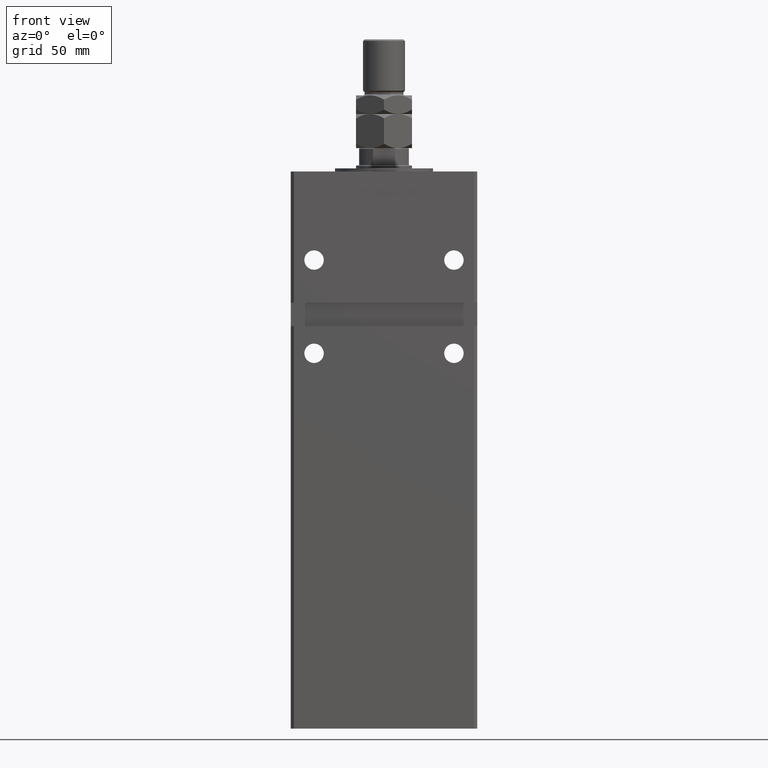
[diagram: clean part render]
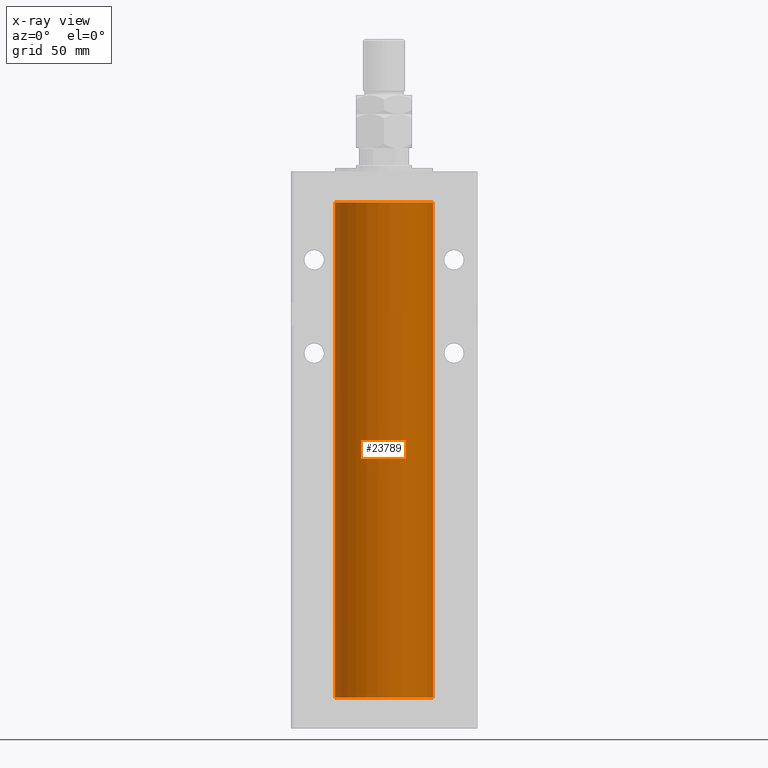
[diagram: x-ray — body ghosted, one internal face saturated and labeled with its STEP entity id]
A machine part, front view, then the same camera in x-ray: the body is ghosted and one INTERNAL B-rep face — a face not visible from any outside direction — is saturated and labeled: STEP entity #23789.
In plain terms, the highlighted cylindrical surface (partial cylindrical patch) has radius 31.5 mm, axis along (-0, -0, -1).
Its self-contained STEP definition (entity closure, byte-faithful):
#1245 = ORIENTED_EDGE ( 'NONE', *, *, #35800, .F. ) ;
#1313 = DIRECTION ( 'NONE',  ( -0.000000000000000000, -0.000000000000000000, -1.000000000000000000 ) ) ;
#2212 = CARTESIAN_POINT ( 'NONE',  ( -31.50000000000000000, 0.000000000000000000, 318.5000000000000000 ) ) ;
#3697 = DIRECTION ( 'NONE',  ( -0.000000000000000000, -0.000000000000000000, -1.000000000000000000 ) ) ;
#6182 = CIRCLE ( 'NONE', #51262, 31.50000000000000000 ) ;
#8646 = CARTESIAN_POINT ( 'NONE',  ( -31.50000000000000000, 0.000000000000000000, 318.5000000000000000 ) ) ;
#14042 = AXIS2_PLACEMENT_3D ( 'NONE', #39222, #1313, #35067 ) ;
#14574 = EDGE_CURVE ( 'NONE', #53604, #37786, #49046, .T. ) ;
#15767 = VERTEX_POINT ( 'NONE', #2212 ) ;
#17807 = AXIS2_PLACEMENT_3D ( 'NONE', #21781, #30377, #34499 ) ;
#17872 = VECTOR ( 'NONE', #3697, 1000.000000000000000 ) ;
#18061 = DIRECTION ( 'NONE',  ( 1.000000000000000000, 0.000000000000000000, 0.000000000000000000 ) ) ;
#18394 = CARTESIAN_POINT ( 'NONE',  ( 31.50000000000000000, 3.857637417314162689E-15, 0.000000000000000000 ) ) ;
#19378 = ORIENTED_EDGE ( 'NONE', *, *, #14574, .T. ) ;
#20013 = VECTOR ( 'NONE', #27762, 1000.000000000000000 ) ;
#21781 = CARTESIAN_POINT ( 'NONE',  ( 0.000000000000000000, 0.000000000000000000, 0.000000000000000000 ) ) ;
#22696 = EDGE_LOOP ( 'NONE', ( #37752, #19378, #34373, #1245 ) ) ;
#23789 = ADVANCED_FACE ( 'NONE', ( #42824 ), #38941, .F. ) ;
#27762 = DIRECTION ( 'NONE',  ( -0.000000000000000000, -0.000000000000000000, -1.000000000000000000 ) ) ;
#30377 = DIRECTION ( 'NONE',  ( -0.000000000000000000, 0.000000000000000000, 1.000000000000000000 ) ) ;
#32039 = VERTEX_POINT ( 'NONE', #51857 ) ;
#34373 = ORIENTED_EDGE ( 'NONE', *, *, #51291, .F. ) ;
#34499 = DIRECTION ( 'NONE',  ( 1.000000000000000000, 0.000000000000000000, 0.000000000000000000 ) ) ;
#35067 = DIRECTION ( 'NONE',  ( -1.000000000000000000, 0.000000000000000000, 0.000000000000000000 ) ) ;
#35800 = EDGE_CURVE ( 'NONE', #15767, #32039, #41600, .T. ) ;
#37752 = ORIENTED_EDGE ( 'NONE', *, *, #46725, .T. ) ;
#37786 = VERTEX_POINT ( 'NONE', #18394 ) ;
#38941 = CYLINDRICAL_SURFACE ( 'NONE', #14042, 31.50000000000000000 ) ;
#39222 = CARTESIAN_POINT ( 'NONE',  ( 0.000000000000000000, 0.000000000000000000, 318.5000000000000000 ) ) ;
#40187 = CARTESIAN_POINT ( 'NONE',  ( 0.000000000000000000, 0.000000000000000000, 318.5000000000000000 ) ) ;
#41600 = LINE ( 'NONE', #8646, #17872 ) ;
#41681 = CIRCLE ( 'NONE', #17807, 31.50000000000000000 ) ;
#42824 = FACE_OUTER_BOUND ( 'NONE', #22696, .T. ) ;
#43774 = DIRECTION ( 'NONE',  ( -0.000000000000000000, 0.000000000000000000, 1.000000000000000000 ) ) ;
#45012 = CARTESIAN_POINT ( 'NONE',  ( 31.50000000000000000, 3.857637417314162689E-15, 318.5000000000000000 ) ) ;
#46725 = EDGE_CURVE ( 'NONE', #15767, #53604, #6182, .T. ) ;
#49046 = LINE ( 'NONE', #52895, #20013 ) ;
#51262 = AXIS2_PLACEMENT_3D ( 'NONE', #40187, #43774, #18061 ) ;
#51291 = EDGE_CURVE ( 'NONE', #32039, #37786, #41681, .T. ) ;
#51857 = CARTESIAN_POINT ( 'NONE',  ( -31.50000000000000000, 0.000000000000000000, 0.000000000000000000 ) ) ;
#52895 = CARTESIAN_POINT ( 'NONE',  ( 31.50000000000000000, 3.857637417314162689E-15, 318.5000000000000000 ) ) ;
#53604 = VERTEX_POINT ( 'NONE', #45012 ) ;